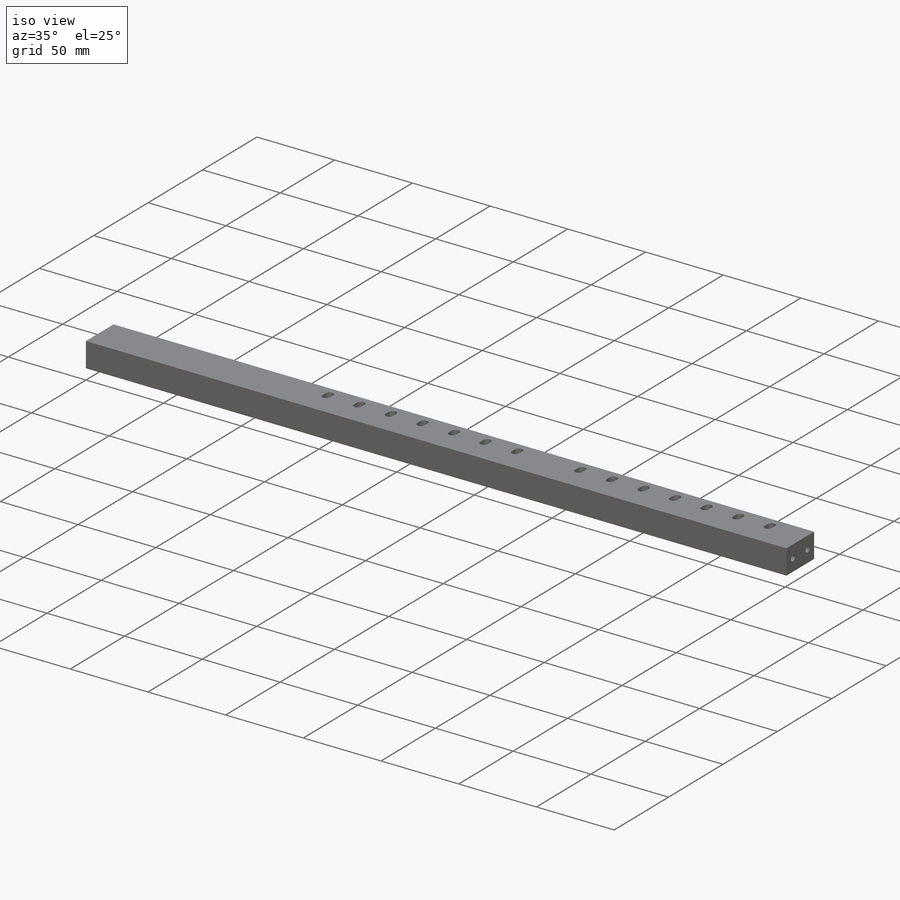
[diagram: iso view]
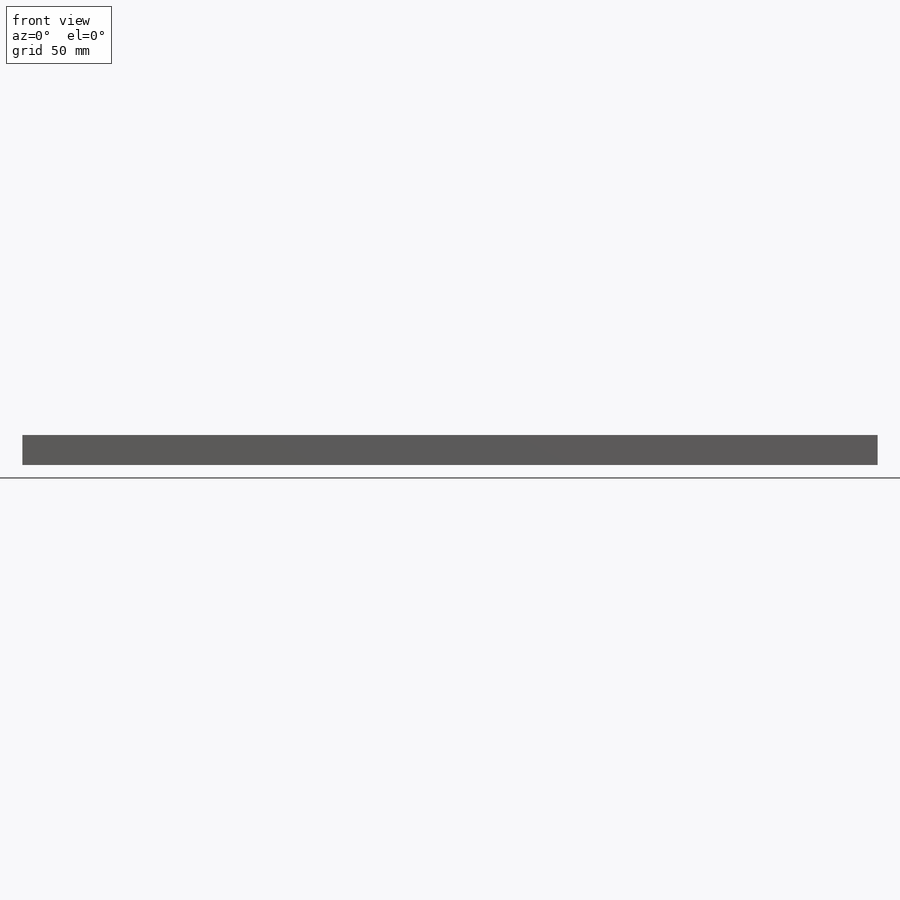
[diagram: front view]
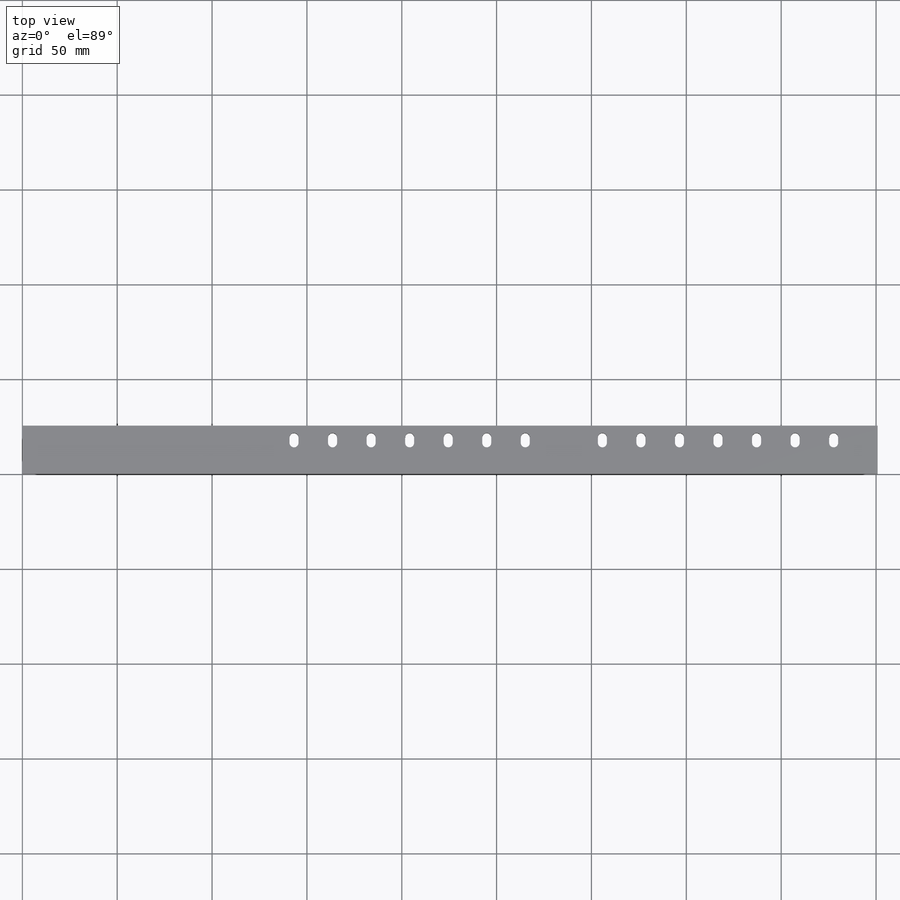
[diagram: top view]
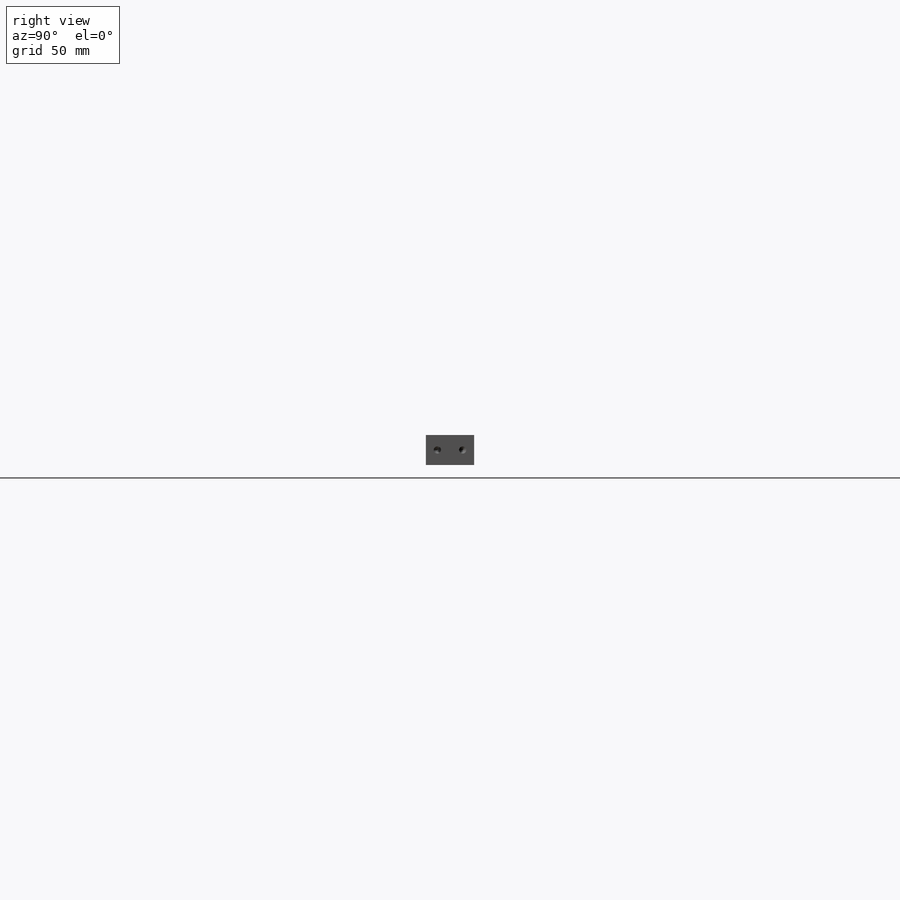
[diagram: right view]
SOLIDWORKS PART (.sldprt)
format: sldprt  version: not decoded by parser v0  size: 307,200 bytes
history: native  units: mm
features: sketch x7, hole x3, material x1, extrude x1 (+13 scaffold rows collapsed)
feature tree (25):
  scaffold x13  (default folders/planes/origin — collapsed)
  material  "Material <not specified>"
  sketch  "Sketch1"  dims[D1=25.4mm D2=15.875mm]
  extrude  "Boss-Extrude1"  Depth=450.85mm
  hole  "Tap Drill for #10-24 Tap1"  Diameter=3.7973mm Depth=20.701mm
  sketch  "Sketch3"  dims[D1=6.0mm D2=6.0mm]
  sketch  "Sketch4"  dims[hole-wizard template sketch: 47 standard entries collapsed; hole parameters kept: c15.Hole Depth=20.701mm c15.D3=~14.816244mm c15.Drill Angle=118.0deg]
  hole  "Tap Drill for #10-24 Tap2"  Diameter=3.7973mm Depth=19.05mm
  sketch  "Sketch6"
  sketch  "Sketch5"  dims[hole-wizard template sketch: 47 standard entries collapsed; hole parameters kept: c15.Hole Depth=19.05mm c15.D3=~14.816244mm c15.Drill Angle=118.0deg]
  hole  "#10 Clearance Slot2"  Diameter=4.7625mm Depth=15.875mm
  sketch  "Sketch12"  dims[D1=7.62mm D2=23.1775mm D3=7.62mm D4=15.0]
  sketch  "Sketch11"  dims[hole-wizard template sketch: 60 standard entries collapsed; hole parameters kept: c18.Thru Hole Depth=15.875mm]
decode coverage: 10 of 11 modeling features carry decoded parameters
note: ~ marks probable driven/reference dimensions
note: suppression state not decoded; provenance and decode notes live in map.json
